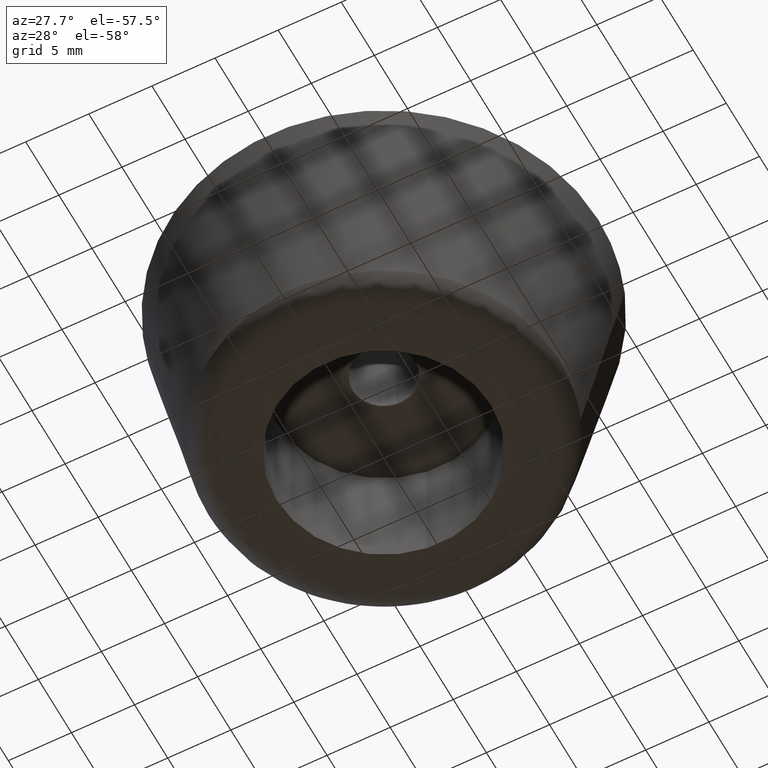
[diagram: clean part render]
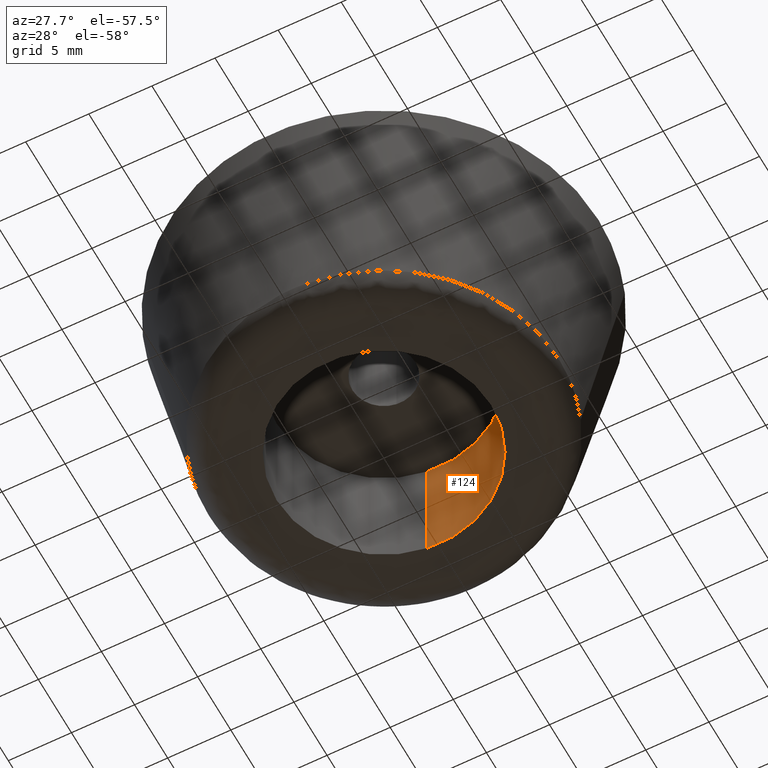
[diagram: same view with one face highlighted and labeled with its STEP entity id]
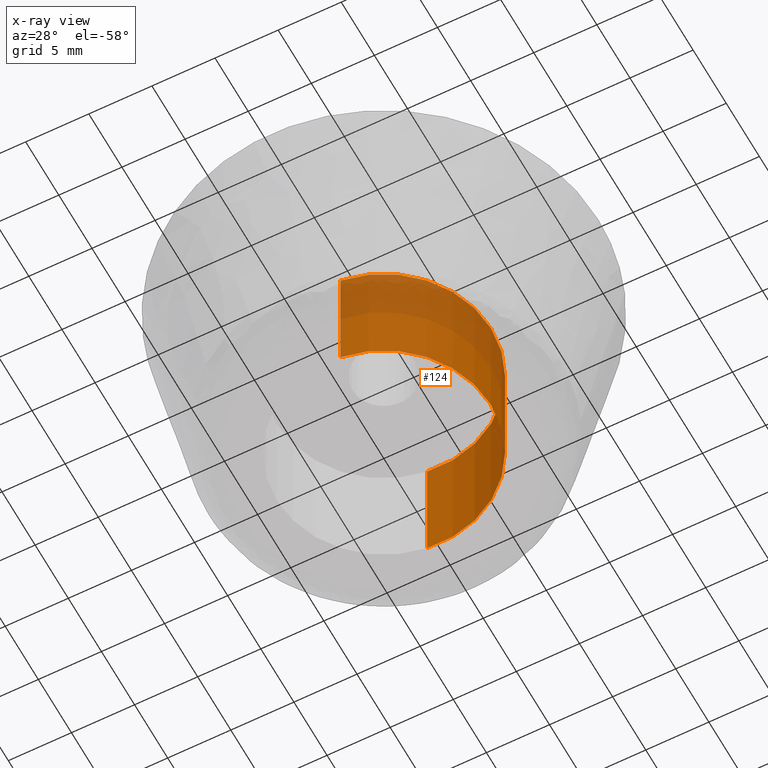
[diagram: x-ray of the same camera — body ghosted, the highlighted face saturated]
A machine part, auxiliary view. The second image highlights one B-rep face of the part: STEP entity #124.
The next image is the same camera in x-ray: the body ghosted, the highlighted face saturated — about 35% of this face is hidden behind the body in this view.
In plain terms, the highlighted cylindrical surface (partial cylindrical patch) has radius 8.5 mm, axis along (-0, -0, 1).
Its self-contained STEP definition (entity closure, byte-faithful):
#124=ADVANCED_FACE('',(#259),#258,.F.);
#258=CYLINDRICAL_SURFACE('',#449,8.50000000000E+000);
#259=FACE_OUTER_BOUND('',#450,.T.);
#446=CARTESIAN_POINT('',(-7.05638507105E-015,-9.98629515442E-016,1.02500000000E+001));
#447=DIRECTION('',(-1.22703389078E-015,-1.45851577806E-016,1.00000000000E+000));
#448=DIRECTION('',(1.18034234657E-001,-9.93009526364E-001,-9.61424228238E-031));
#449=AXIS2_PLACEMENT_3D('',#446,#447,#448);
#450=EDGE_LOOP('',(#571,#572,#573,#574));
#571=ORIENTED_EDGE('',*,*,#646,.T.);
#572=ORIENTED_EDGE('',*,*,#670,.T.);
#573=ORIENTED_EDGE('',*,*,#658,.F.);
#574=ORIENTED_EDGE('',*,*,#671,.F.);
#646=EDGE_CURVE('',#871,#863,#872,.T.);
#658=EDGE_CURVE('',#948,#955,#956,.T.);
#670=EDGE_CURVE('',#863,#955,#1036,.T.);
#671=EDGE_CURVE('',#871,#948,#1042,.T.);
#863=VERTEX_POINT('',#1207);
#871=VERTEX_POINT('',#1213);
#872=CIRCLE('',#1217,8.50000000000E+000);
#948=VERTEX_POINT('',#1268);
#955=VERTEX_POINT('',#1273);
#956=CIRCLE('',#1277,8.50000000000E+000);
#1036=(BOUNDED_CURVE() B_SPLINE_CURVE(1,(#1330,#1331),.UNSPECIFIED.,.F.,.F.) B_SPLINE_CURVE_WITH_KNOTS((2,2),(8.33333343261E-002,9.16666667006E-001),.UNSPECIFIED.) CURVE() GEOMETRIC_REPRESENTATION_ITEM() RATIONAL_B_SPLINE_CURVE((1.00000000000E+000,1.00000000000E+000)) REPRESENTATION_ITEM('') );
#1042=(BOUNDED_CURVE() B_SPLINE_CURVE(1,(#1332,#1333),.UNSPECIFIED.,.F.,.F.) B_SPLINE_CURVE_WITH_KNOTS((2,2),(8.33333333334E-002,9.16666666667E-001),.UNSPECIFIED.) CURVE() GEOMETRIC_REPRESENTATION_ITEM() RATIONAL_B_SPLINE_CURVE((7.50000000000E-001,7.50000000000E-001)) REPRESENTATION_ITEM('') );
#1207=CARTESIAN_POINT('',(1.00328790791E+000,-8.44058134099E+000,2.16034430758E-014));
#1213=CARTESIAN_POINT('',(-1.00474982022E+000,8.44040744270E+000,1.08356264446E-014));
#1214=CARTESIAN_POINT('',(1.12443387934E-012,5.14255305006E-013,1.62037363692E-014));
#1215=DIRECTION('',(-2.12369495071E-014,-3.16405710330E-015,-1.00000000000E+000));
#1216=DIRECTION('',(-1.00000000000E+000,-6.01185767835E-014,2.12369495071E-014));
#1217=AXIS2_PLACEMENT_3D('',#1214,#1215,#1216);
#1268=CARTESIAN_POINT('',(-1.00474982022E+000,8.44040744270E+000,1.00000000000E+001));
#1273=CARTESIAN_POINT('',(1.00328790791E+000,-8.44058134099E+000,1.00000000000E+001));
#1274=CARTESIAN_POINT('',(2.33058017329E-012,-3.59712259979E-013,1.00000000000E+001));
#1275=DIRECTION('',(-2.08983157577E-016,2.95546815752E-016,-1.00000000000E+000));
#1276=DIRECTION('',(-1.00000000000E+000,4.20578604623E-014,2.08983157577E-016));
#1277=AXIS2_PLACEMENT_3D('',#1274,#1275,#1276);
#1330=CARTESIAN_POINT('',(1.00329099458E+000,-8.44058097409E+000,1.19125636022E-008));
#1331=CARTESIAN_POINT('',(1.00329099458E+000,-8.44058097409E+000,1.00000000041E+001));
#1332=CARTESIAN_POINT('',(-1.00329099458E+000,8.44058097409E+000,7.60872846210E-014));
#1333=CARTESIAN_POINT('',(-1.00329099458E+000,8.44058097409E+000,1.00000000000E+001));